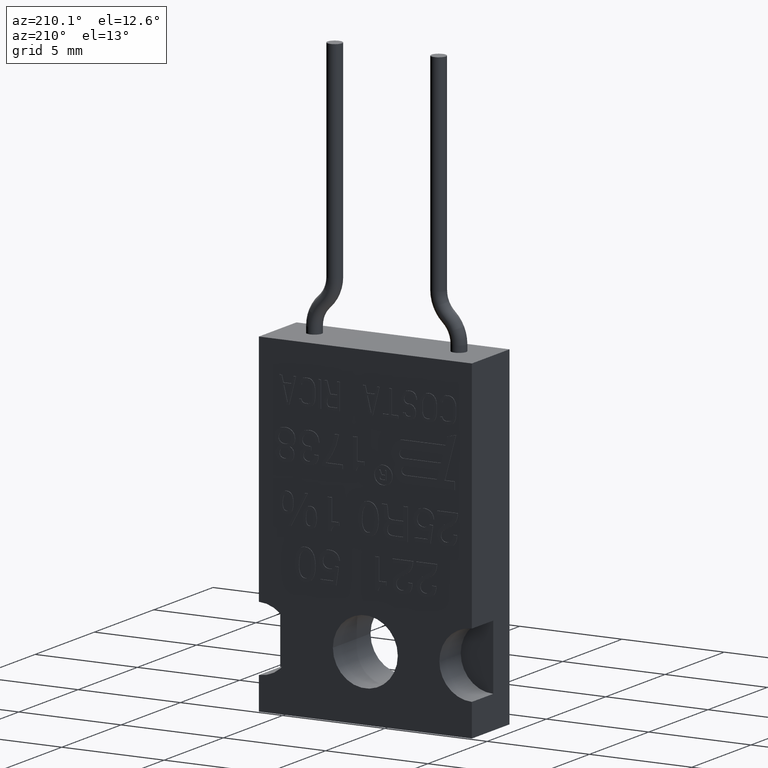
[diagram: clean part render]
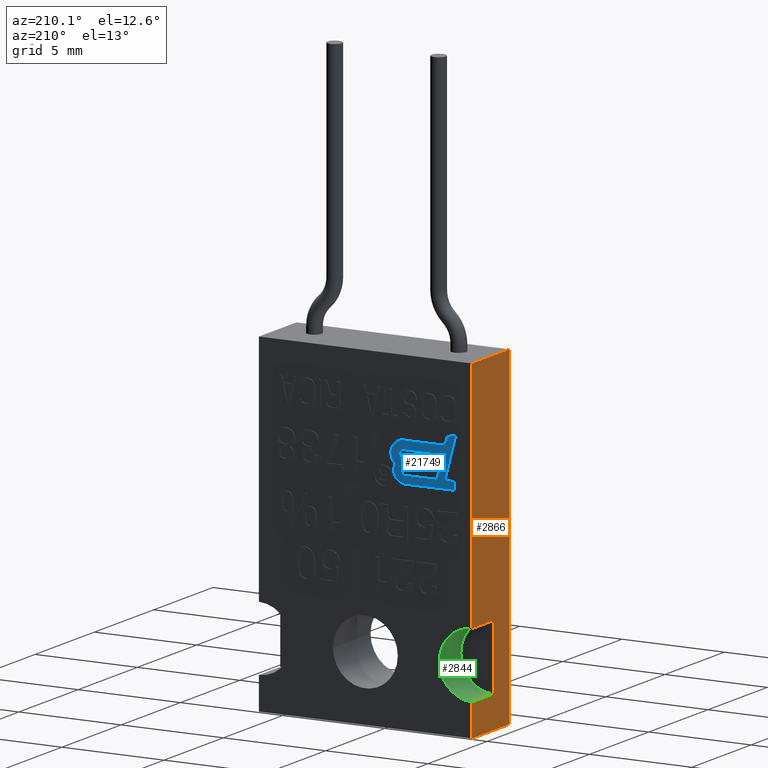
[diagram: same view with three faces highlighted in distinct colors, each labeled with its STEP entity id]
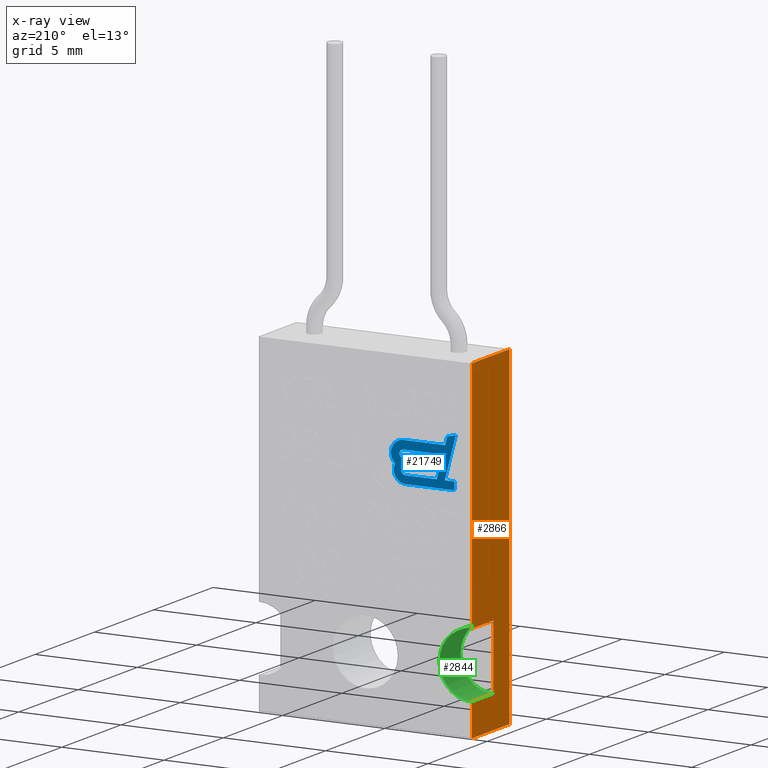
[diagram: x-ray of the same camera — body ghosted, the three highlighted faces saturated]
A machine part, auxiliary view with three faces highlighted in distinct colors.
The next image is the same camera in x-ray (body ghosted, the three faces saturated) — at least one of them is partly hidden behind the body in this view.
Their STEP definitions:

[orange] entity #2866 — the highlighted planar face has unit normal (-1, 0, 0).
#2579=DIRECTION('',(0.E0,0.E0,1.E0));
#2580=VECTOR('',#2579,7.1E-2);
#2581=CARTESIAN_POINT('',(2.05E-1,3.575E-1,-1.25E-1));
#2582=LINE('',#2581,#2580);
#2583=DIRECTION('',(0.E0,0.E0,-1.E0));
#2584=VECTOR('',#2583,7.1E-2);
#2585=CARTESIAN_POINT('',(2.05E-1,2.325E-1,-5.4E-2));
#2586=LINE('',#2585,#2584);
#2587=DIRECTION('',(0.E0,-1.E0,0.E0));
#2588=VECTOR('',#2587,6.4E-1);
#2589=CARTESIAN_POINT('',(2.05E-1,4.2E-1,0.E0));
#2590=LINE('',#2589,#2588);
#2591=DIRECTION('',(0.E0,0.E0,1.E0));
#2592=VECTOR('',#2591,1.25E-1);
#2593=CARTESIAN_POINT('',(2.05E-1,4.2E-1,-1.25E-1));
#2594=LINE('',#2593,#2592);
#2595=DIRECTION('',(0.E0,-1.E0,0.E0));
#2596=VECTOR('',#2595,1.25E-1);
#2597=CARTESIAN_POINT('',(2.05E-1,3.575E-1,-5.4E-2));
#2598=LINE('',#2597,#2596);
#2614=DIRECTION('',(0.E0,-1.E0,0.E0));
#2615=VECTOR('',#2614,6.25E-2);
#2616=CARTESIAN_POINT('',(2.05E-1,4.2E-1,-1.25E-1));
#2617=LINE('',#2616,#2615);
#2639=DIRECTION('',(0.E0,-1.E0,0.E0));
#2640=VECTOR('',#2639,4.525E-1);
#2641=CARTESIAN_POINT('',(2.05E-1,2.325E-1,-1.25E-1));
#2642=LINE('',#2641,#2640);
#2680=DIRECTION('',(0.E0,0.E0,1.E0));
#2681=VECTOR('',#2680,1.25E-1);
#2682=CARTESIAN_POINT('',(2.05E-1,-2.2E-1,-1.25E-1));
#2683=LINE('',#2682,#2681);
#2765=CARTESIAN_POINT('',(2.05E-1,3.575E-1,-1.25E-1));
#2766=CARTESIAN_POINT('',(2.05E-1,3.575E-1,-5.4E-2));
#2767=VERTEX_POINT('',#2765);
#2768=VERTEX_POINT('',#2766);
#2769=CARTESIAN_POINT('',(2.05E-1,2.325E-1,-5.4E-2));
#2771=VERTEX_POINT('',#2769);
#2773=CARTESIAN_POINT('',(2.05E-1,2.325E-1,-1.25E-1));
#2774=VERTEX_POINT('',#2773);
#2793=CARTESIAN_POINT('',(2.05E-1,-2.2E-1,-1.25E-1));
#2794=VERTEX_POINT('',#2793);
#2795=CARTESIAN_POINT('',(2.05E-1,4.2E-1,-1.25E-1));
#2796=VERTEX_POINT('',#2795);
#2813=CARTESIAN_POINT('',(2.05E-1,4.2E-1,0.E0));
#2814=VERTEX_POINT('',#2813);
#2815=CARTESIAN_POINT('',(2.05E-1,-2.2E-1,0.E0));
#2816=VERTEX_POINT('',#2815);
#2845=CARTESIAN_POINT('',(2.05E-1,-2.2E-1,0.E0));
#2846=DIRECTION('',(1.E0,0.E0,0.E0));
#2847=DIRECTION('',(0.E0,0.E0,-1.E0));
#2848=AXIS2_PLACEMENT_3D('',#2845,#2846,#2847);
#2849=PLANE('',#2848);
#2850=ORIENTED_EDGE('',*,*,#2830,.T.);
#2852=ORIENTED_EDGE('',*,*,#2851,.T.);
#2853=ORIENTED_EDGE('',*,*,#2836,.T.);
#2855=ORIENTED_EDGE('',*,*,#2854,.T.);
#2857=ORIENTED_EDGE('',*,*,#2856,.T.);
#2859=ORIENTED_EDGE('',*,*,#2858,.F.);
#2861=ORIENTED_EDGE('',*,*,#2860,.F.);
#2863=ORIENTED_EDGE('',*,*,#2862,.T.);
#2864=EDGE_LOOP('',(#2850,#2852,#2853,#2855,#2857,#2859,#2861,#2863));
#2865=FACE_OUTER_BOUND('',#2864,.F.);
#2866=ADVANCED_FACE('',(#2865),#2849,.T.);
#2830=EDGE_CURVE('',#2767,#2768,#2582,.T.);
#2836=EDGE_CURVE('',#2771,#2774,#2586,.T.);
#2851=EDGE_CURVE('',#2768,#2771,#2598,.T.);
#2854=EDGE_CURVE('',#2774,#2794,#2642,.T.);
#2856=EDGE_CURVE('',#2794,#2816,#2683,.T.);
#2858=EDGE_CURVE('',#2814,#2816,#2590,.T.);
#2860=EDGE_CURVE('',#2796,#2814,#2594,.T.);
#2862=EDGE_CURVE('',#2796,#2767,#2617,.T.);

[blue] entity #21749 — the highlighted planar face has unit normal (0, 1, 0).
#21359=DIRECTION('',(-9.659258262891E-1,0.E0,2.588190451025E-1));
#21360=VECTOR('',#21359,1.732050807569E-2);
#21361=CARTESIAN_POINT('',(7.64E-2,1.E-3,-7.45E-2));
#21362=LINE('',#21361,#21360);
#21363=DIRECTION('',(2.588190451025E-1,0.E0,-9.659258262891E-1));
#21364=VECTOR('',#21363,8.230445634260E-2);
#21365=CARTESIAN_POINT('',(5.509803920173E-2,1.E-3,5.E-3));
#21366=LINE('',#21365,#21364);
#21367=DIRECTION('',(-1.E0,0.E0,0.E0));
#21368=VECTOR('',#21367,1.897085729385E-2);
#21369=CARTESIAN_POINT('',(7.406889649557E-2,1.E-3,5.E-3));
#21370=LINE('',#21369,#21368);
#21371=DIRECTION('',(0.E0,0.E0,-1.E0));
#21372=VECTOR('',#21371,1.5E-2);
#21373=CARTESIAN_POINT('',(7.406889649557E-2,1.E-3,2.E-2));
#21374=LINE('',#21373,#21372);
#21375=DIRECTION('',(1.E0,0.E0,0.E0));
#21376=VECTOR('',#21375,9.45E-2);
#21377=CARTESIAN_POINT('',(-2.043110350443E-2,1.E-3,2.E-2));
#21378=LINE('',#21377,#21376);
#21379=CARTESIAN_POINT('',(-2.043110350443E-2,1.E-3,-2.609441244484E-3));
#21380=DIRECTION('',(0.E0,1.E0,0.E0));
#21381=DIRECTION('',(-8.858749972312E-1,0.E0,-4.639240123992E-1));
#21382=AXIS2_PLACEMENT_3D('',#21379,#21380,#21381);
#21384=CARTESIAN_POINT('',(-2.476513550698E-2,1.E-3,-3.110978205565E-2));
#21385=DIRECTION('',(0.E0,1.E0,0.E0));
#21386=DIRECTION('',(0.E0,0.E0,-1.E0));
#21387=AXIS2_PLACEMENT_3D('',#21384,#21385,#21386);
#21389=DIRECTION('',(-1.E0,0.E0,0.E0));
#21390=VECTOR('',#21389,8.041098354843E-2);
#21391=CARTESIAN_POINT('',(5.564584804144E-2,1.E-3,-5.5E-2));
#21392=LINE('',#21391,#21390);
#21393=DIRECTION('',(-2.588190451025E-1,0.E0,9.659258262891E-1));
#21394=VECTOR('',#21393,1.554686936662E-2);
#21395=CARTESIAN_POINT('',(5.966967392524E-2,1.E-3,-7.001712263916E-2));
#21396=LINE('',#21395,#21394);
#21397=CARTESIAN_POINT('',(-2.043110350443E-2,1.E-3,-2.609441244484E-3));
#21398=DIRECTION('',(0.E0,-1.E0,0.E0));
#21399=DIRECTION('',(0.E0,0.E0,1.E0));
#21400=AXIS2_PLACEMENT_3D('',#21397,#21398,#21399);
#21402=DIRECTION('',(-1.E0,0.E0,0.E0));
#21403=VECTOR('',#21402,6.E-2);
#21404=CARTESIAN_POINT('',(3.956889649557E-2,1.E-3,5.E-3));
#21405=LINE('',#21404,#21403);
#21406=DIRECTION('',(-2.588190451025E-1,0.E0,9.659258262891E-1));
#21407=VECTOR('',#21406,1.575574653329E-2);
#21408=CARTESIAN_POINT('',(4.364678376820E-2,1.E-3,-1.021888248897E-2));
#21409=LINE('',#21408,#21407);
#21410=DIRECTION('',(1.E0,0.E0,0.E0));
#21411=VECTOR('',#21410,6.407788727262E-2);
#21412=CARTESIAN_POINT('',(-2.043110350443E-2,1.E-3,-1.021888248897E-2));
#21413=LINE('',#21412,#21411);
#21414=CARTESIAN_POINT('',(-2.476513550698E-2,1.E-3,-3.110978205565E-2));
#21415=DIRECTION('',(0.E0,-1.E0,0.E0));
#21416=DIRECTION('',(0.E0,0.E0,1.E0));
#21417=AXIS2_PLACEMENT_3D('',#21414,#21415,#21416);
#21419=DIRECTION('',(-1.E0,0.E0,0.E0));
#21420=VECTOR('',#21419,7.2E-2);
#21421=CARTESIAN_POINT('',(4.723486449302E-2,1.E-3,-2.360978205565E-2));
#21422=LINE('',#21421,#21420);
#21423=DIRECTION('',(-2.588190451025E-1,0.E0,9.659258262891E-1));
#21424=VECTOR('',#21423,1.552914270615E-2);
#21425=CARTESIAN_POINT('',(5.125410237948E-2,1.E-3,-3.860978205565E-2));
#21426=LINE('',#21425,#21424);
#21427=DIRECTION('',(1.E0,0.E0,0.E0));
#21428=VECTOR('',#21427,7.601923788647E-2);
#21429=CARTESIAN_POINT('',(-2.476513550698E-2,1.E-3,-3.860978205565E-2));
#21430=LINE('',#21429,#21428);
#21493=CARTESIAN_POINT('',(7.64E-2,1.E-3,-7.45E-2));
#21494=CARTESIAN_POINT('',(5.966967392524E-2,1.E-3,-7.001712263916E-2));
#21495=VERTEX_POINT('',#21493);
#21496=VERTEX_POINT('',#21494);
#21497=CARTESIAN_POINT('',(5.564584804144E-2,1.E-3,-5.5E-2));
#21498=VERTEX_POINT('',#21497);
#21499=CARTESIAN_POINT('',(-2.476513550698E-2,1.E-3,-5.5E-2));
#21500=VERTEX_POINT('',#21499);
#21501=CARTESIAN_POINT('',(-4.046024220428E-2,1.E-3,-1.309850394473E-2));
#21502=VERTEX_POINT('',#21501);
#21503=CARTESIAN_POINT('',(-2.043110350443E-2,1.E-3,2.E-2));
#21504=VERTEX_POINT('',#21503);
#21505=CARTESIAN_POINT('',(7.406889649557E-2,1.E-3,2.E-2));
#21506=VERTEX_POINT('',#21505);
#21507=CARTESIAN_POINT('',(7.406889649557E-2,1.E-3,5.E-3));
#21508=VERTEX_POINT('',#21507);
#21509=CARTESIAN_POINT('',(5.509803920173E-2,1.E-3,5.E-3));
#21510=VERTEX_POINT('',#21509);
#21511=CARTESIAN_POINT('',(-2.043110350443E-2,1.E-3,5.E-3));
#21512=CARTESIAN_POINT('',(-2.043110350443E-2,1.E-3,-1.021888248897E-2));
#21513=VERTEX_POINT('',#21511);
#21514=VERTEX_POINT('',#21512);
#21515=CARTESIAN_POINT('',(4.364678376820E-2,1.E-3,-1.021888248897E-2));
#21516=VERTEX_POINT('',#21515);
#21517=CARTESIAN_POINT('',(3.956889649557E-2,1.E-3,5.E-3));
#21518=VERTEX_POINT('',#21517);
#21519=CARTESIAN_POINT('',(-2.476513550698E-2,1.E-3,-2.360978205565E-2));
#21520=CARTESIAN_POINT('',(-2.476513550698E-2,1.E-3,-3.860978205565E-2));
#21521=VERTEX_POINT('',#21519);
#21522=VERTEX_POINT('',#21520);
#21523=CARTESIAN_POINT('',(5.125410237948E-2,1.E-3,-3.860978205565E-2));
#21524=VERTEX_POINT('',#21523);
#21525=CARTESIAN_POINT('',(4.723486449302E-2,1.E-3,-2.360978205565E-2));
#21526=VERTEX_POINT('',#21525);
#21714=CARTESIAN_POINT('',(0.E0,1.E-3,0.E0));
#21715=DIRECTION('',(0.E0,1.E0,0.E0));
#21716=DIRECTION('',(-1.E0,0.E0,0.E0));
#21717=AXIS2_PLACEMENT_3D('',#21714,#21715,#21716);
#21718=PLANE('',#21717);
#21719=ORIENTED_EDGE('',*,*,#21596,.F.);
#21720=ORIENTED_EDGE('',*,*,#21611,.F.);
#21721=ORIENTED_EDGE('',*,*,#21625,.F.);
#21722=ORIENTED_EDGE('',*,*,#21639,.F.);
#21723=ORIENTED_EDGE('',*,*,#21653,.F.);
#21724=ORIENTED_EDGE('',*,*,#21667,.F.);
#21725=ORIENTED_EDGE('',*,*,#21681,.F.);
#21726=ORIENTED_EDGE('',*,*,#21695,.F.);
#21727=ORIENTED_EDGE('',*,*,#21708,.F.);
#21728=EDGE_LOOP('',(#21719,#21720,#21721,#21722,#21723,#21724,#21725,#21726,
#21727));
#21729=FACE_OUTER_BOUND('',#21728,.F.);
#21731=ORIENTED_EDGE('',*,*,#21730,.F.);
#21733=ORIENTED_EDGE('',*,*,#21732,.F.);
#21735=ORIENTED_EDGE('',*,*,#21734,.F.);
#21737=ORIENTED_EDGE('',*,*,#21736,.F.);
#21738=EDGE_LOOP('',(#21731,#21733,#21735,#21737));
#21739=FACE_BOUND('',#21738,.F.);
#21741=ORIENTED_EDGE('',*,*,#21740,.F.);
#21742=ORIENTED_EDGE('',*,*,#21536,.F.);
#21744=ORIENTED_EDGE('',*,*,#21743,.F.);
#21746=ORIENTED_EDGE('',*,*,#21745,.F.);
#21747=EDGE_LOOP('',(#21741,#21742,#21744,#21746));
#21748=FACE_BOUND('',#21747,.F.);
#21749=ADVANCED_FACE('',(#21729,#21739,#21748),#21718,.T.);
#21383=CIRCLE('',#21382,2.260944124448E-2);
#21388=CIRCLE('',#21387,2.389021794435E-2);
#21401=CIRCLE('',#21400,7.609441244484E-3);
#21418=CIRCLE('',#21417,7.5E-3);
#21536=EDGE_CURVE('',#21526,#21521,#21422,.T.);
#21596=EDGE_CURVE('',#21495,#21496,#21362,.T.);
#21611=EDGE_CURVE('',#21510,#21495,#21366,.T.);
#21625=EDGE_CURVE('',#21508,#21510,#21370,.T.);
#21639=EDGE_CURVE('',#21506,#21508,#21374,.T.);
#21653=EDGE_CURVE('',#21504,#21506,#21378,.T.);
#21667=EDGE_CURVE('',#21502,#21504,#21383,.T.);
#21681=EDGE_CURVE('',#21500,#21502,#21388,.T.);
#21695=EDGE_CURVE('',#21498,#21500,#21392,.T.);
#21708=EDGE_CURVE('',#21496,#21498,#21396,.T.);
#21730=EDGE_CURVE('',#21513,#21514,#21401,.T.);
#21732=EDGE_CURVE('',#21518,#21513,#21405,.T.);
#21734=EDGE_CURVE('',#21516,#21518,#21409,.T.);
#21736=EDGE_CURVE('',#21514,#21516,#21413,.T.);
#21740=EDGE_CURVE('',#21521,#21522,#21418,.T.);
#21743=EDGE_CURVE('',#21524,#21526,#21426,.T.);
#21745=EDGE_CURVE('',#21522,#21524,#21430,.T.);

[green] entity #2844 — the highlighted cylindrical surface (partial cylindrical patch) has radius 1.5875 mm, axis along (0, -1, 0).
#2579=DIRECTION('',(0.E0,0.E0,1.E0));
#2580=VECTOR('',#2579,7.1E-2);
#2581=CARTESIAN_POINT('',(2.05E-1,3.575E-1,-1.25E-1));
#2582=LINE('',#2581,#2580);
#2583=DIRECTION('',(0.E0,0.E0,-1.E0));
#2584=VECTOR('',#2583,7.1E-2);
#2585=CARTESIAN_POINT('',(2.05E-1,2.325E-1,-5.4E-2));
#2586=LINE('',#2585,#2584);
#2599=CARTESIAN_POINT('',(2.05E-1,2.95E-1,-5.4E-2));
#2600=DIRECTION('',(0.E0,0.E0,-1.E0));
#2601=DIRECTION('',(-1.E0,0.E0,0.E0));
#2602=AXIS2_PLACEMENT_3D('',#2599,#2600,#2601);
#2604=CARTESIAN_POINT('',(2.05E-1,2.95E-1,-5.4E-2));
#2605=DIRECTION('',(0.E0,0.E0,-1.E0));
#2606=DIRECTION('',(0.E0,-1.E0,0.E0));
#2607=AXIS2_PLACEMENT_3D('',#2604,#2605,#2606);
#2609=CARTESIAN_POINT('',(2.05E-1,2.95E-1,-1.25E-1));
#2610=DIRECTION('',(0.E0,0.E0,1.E0));
#2611=DIRECTION('',(0.E0,1.E0,0.E0));
#2612=AXIS2_PLACEMENT_3D('',#2609,#2610,#2611);
#2643=CARTESIAN_POINT('',(2.05E-1,2.95E-1,-1.25E-1));
#2644=DIRECTION('',(0.E0,0.E0,1.E0));
#2645=DIRECTION('',(-1.E0,0.E0,0.E0));
#2646=AXIS2_PLACEMENT_3D('',#2643,#2644,#2645);
#2765=CARTESIAN_POINT('',(2.05E-1,3.575E-1,-1.25E-1));
#2766=CARTESIAN_POINT('',(2.05E-1,3.575E-1,-5.4E-2));
#2767=VERTEX_POINT('',#2765);
#2768=VERTEX_POINT('',#2766);
#2769=CARTESIAN_POINT('',(2.05E-1,2.325E-1,-5.4E-2));
#2770=CARTESIAN_POINT('',(1.425E-1,2.95E-1,-5.4E-2));
#2771=VERTEX_POINT('',#2769);
#2772=VERTEX_POINT('',#2770);
#2773=CARTESIAN_POINT('',(2.05E-1,2.325E-1,-1.25E-1));
#2774=VERTEX_POINT('',#2773);
#2775=CARTESIAN_POINT('',(1.425E-1,2.95E-1,-1.25E-1));
#2776=VERTEX_POINT('',#2775);
#2825=CARTESIAN_POINT('',(2.05E-1,2.95E-1,-1.25E-1));
#2826=DIRECTION('',(0.E0,0.E0,1.E0));
#2827=DIRECTION('',(1.E0,0.E0,0.E0));
#2828=AXIS2_PLACEMENT_3D('',#2825,#2826,#2827);
#2829=CYLINDRICAL_SURFACE('',#2828,6.25E-2);
#2831=ORIENTED_EDGE('',*,*,#2830,.F.);
#2833=ORIENTED_EDGE('',*,*,#2832,.T.);
#2835=ORIENTED_EDGE('',*,*,#2834,.T.);
#2837=ORIENTED_EDGE('',*,*,#2836,.F.);
#2839=ORIENTED_EDGE('',*,*,#2838,.T.);
#2841=ORIENTED_EDGE('',*,*,#2840,.T.);
#2842=EDGE_LOOP('',(#2831,#2833,#2835,#2837,#2839,#2841));
#2843=FACE_OUTER_BOUND('',#2842,.F.);
#2844=ADVANCED_FACE('',(#2843),#2829,.F.);
#2603=CIRCLE('',#2602,6.25E-2);
#2608=CIRCLE('',#2607,6.25E-2);
#2613=CIRCLE('',#2612,6.25E-2);
#2647=CIRCLE('',#2646,6.25E-2);
#2830=EDGE_CURVE('',#2767,#2768,#2582,.T.);
#2832=EDGE_CURVE('',#2767,#2776,#2613,.T.);
#2834=EDGE_CURVE('',#2776,#2774,#2647,.T.);
#2836=EDGE_CURVE('',#2771,#2774,#2586,.T.);
#2838=EDGE_CURVE('',#2771,#2772,#2608,.T.);
#2840=EDGE_CURVE('',#2772,#2768,#2603,.T.);